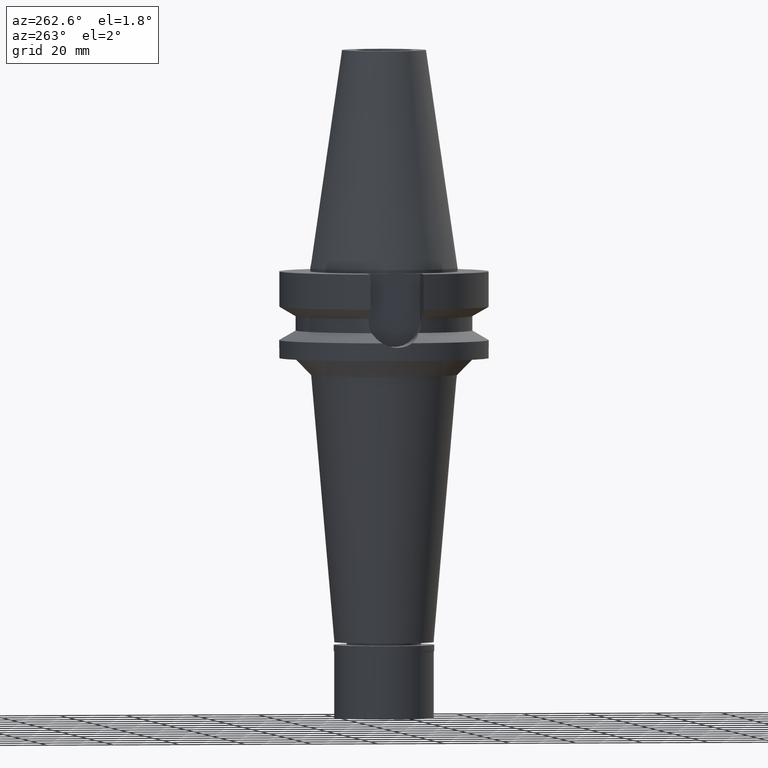
[diagram: clean part render]
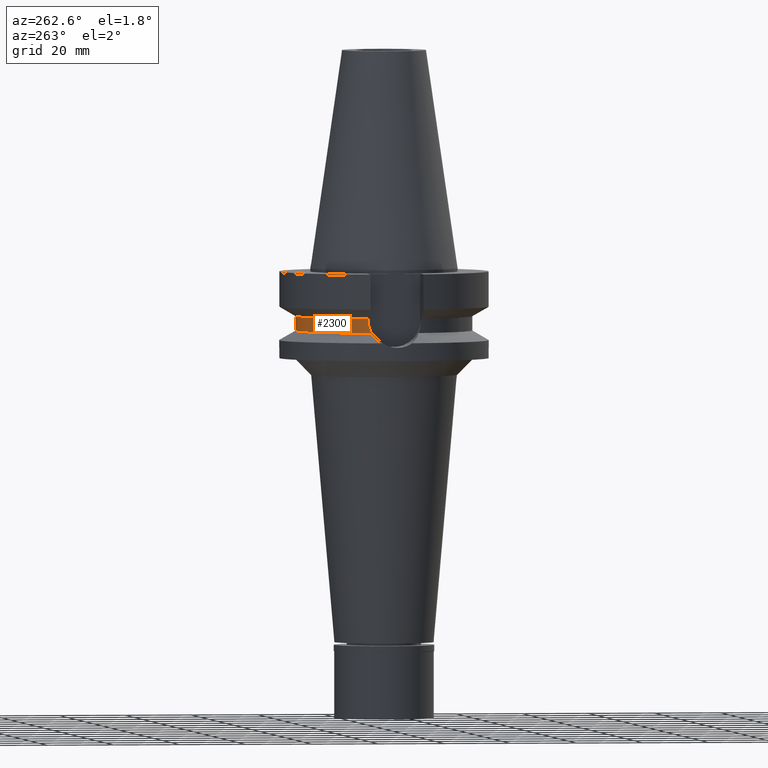
[diagram: same view with one face highlighted and labeled with its STEP entity id]
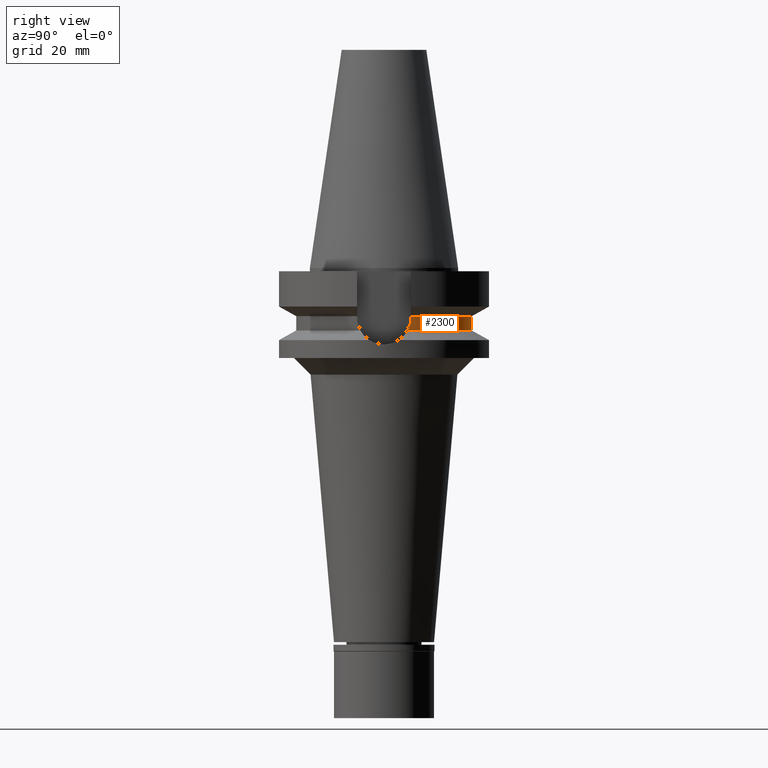
[diagram: same view with one face highlighted and labeled with its STEP entity id]
A machine part, auxiliary view. The second image highlights one B-rep face of the part: STEP entity #2300.
A second angle (right view) of the same face is appended — the face is thin or edge-on in the first view.
In plain terms, the highlighted cylindrical surface (partial cylindrical patch) has radius 26.5 mm, axis along (0, 0, -1).
Its self-contained STEP definition (entity closure, byte-faithful):
#8 = VERTEX_POINT ( 'NONE', #571 ) ;
#45 = ORIENTED_EDGE ( 'NONE', *, *, #2600, .T. ) ;
#61 = EDGE_CURVE ( 'NONE', #1908, #368, #352, .T. ) ;
#75 = VERTEX_POINT ( 'NONE', #2279 ) ;
#77 = CARTESIAN_POINT ( 'NONE',  ( 0.0000000000000000000, 0.0000000000000000000, -18.74774300138999905 ) ) ;
#82 = DIRECTION ( 'NONE',  ( -1.016147365273004305E-06, -3.187008890468015348E-06, -0.9999999999944051421 ) ) ;
#225 = CYLINDRICAL_SURFACE ( 'NONE', #443, 26.50000000000000000 ) ;
#227 = CARTESIAN_POINT ( 'NONE',  ( 25.37573308864354971, 7.637710303585528493, -17.49818662997505925 ) ) ;
#233 = CARTESIAN_POINT ( 'NONE',  ( -25.24772266957999989, 8.050000000000016698, -15.26991016308521054 ) ) ;
#258 = CARTESIAN_POINT ( 'NONE',  ( 25.27269391207094884, 7.973288729587363122, -16.24537813315794210 ) ) ;
#352 = LINE ( 'NONE', #1538, #2216 ) ;
#368 = VERTEX_POINT ( 'NONE', #643 ) ;
#443 = AXIS2_PLACEMENT_3D ( 'NONE', #923, #1893, #1672 ) ;
#490 = CIRCLE ( 'NONE', #2719, 26.49999999999998224 ) ;
#494 = CARTESIAN_POINT ( 'NONE',  ( 25.33293017121149404, 7.777974374833198645, -17.02562462728289816 ) ) ;
#498 = CARTESIAN_POINT ( 'NONE',  ( 25.24772266958000344, 8.050000000000000711, -14.94999999999999929 ) ) ;
#516 = ORIENTED_EDGE ( 'NONE', *, *, #2105, .T. ) ;
#568 = B_SPLINE_CURVE_WITH_KNOTS ( 'NONE', 3,
 ( #1924, #2634, #1428, #2395, #227, #2921, #2661, #494, #3128, #1461, #2426, #258, #1476, #2249 ),
 .UNSPECIFIED., .F., .F.,
 ( 4, 2, 2, 1, 1, 2, 2, 4 ),
 ( 0.0000000000000000000, 0.2499999999999837352, 0.3749999999999755196, 0.4374999999999714673, 0.4687499999999693578, 0.4843749999999682476, 0.4999999999999671929, 1.000000000000000000 ),
 .UNSPECIFIED. ) ;
#571 = CARTESIAN_POINT ( 'NONE',  ( -25.24772216379000156, 8.050001586350001404, -14.45224487750000186 ) ) ;
#643 = CARTESIAN_POINT ( 'NONE',  ( 25.24772413104999913, 8.049995416295999462, -14.45229202408999925 ) ) ;
#679 = CARTESIAN_POINT ( 'NONE',  ( -25.43786288020057995, 7.435590607903159288, -18.11653926705930218 ) ) ;
#709 = CARTESIAN_POINT ( 'NONE',  ( -25.24772266958000344, 8.050000000000000711, -14.94999999999999929 ) ) ;
#713 = VERTEX_POINT ( 'NONE', #2992 ) ;
#720 = CARTESIAN_POINT ( 'NONE',  ( -25.30212858955026789, 7.877670097765133050, -16.61040846296520712 ) ) ;
#923 = CARTESIAN_POINT ( 'NONE',  ( 0.0000000000000000000, 2.144172848286999836E-14, 75.08499999999999375 ) ) ;
#942 = CARTESIAN_POINT ( 'NONE',  ( -25.32118071774123536, 7.816100027253432891, -16.87651110713482439 ) ) ;
#1144 = FACE_OUTER_BOUND ( 'NONE', #2758, .T. ) ;
#1168 = CARTESIAN_POINT ( 'NONE',  ( -25.31202500689251877, 7.845732311877096521, -16.75278555883154397 ) ) ;
#1174 = ORIENTED_EDGE ( 'NONE', *, *, #1945, .F. ) ;
#1223 = ORIENTED_EDGE ( 'NONE', *, *, #3111, .F. ) ;
#1266 = ORIENTED_EDGE ( 'NONE', *, *, #61, .F. ) ;
#1299 = DIRECTION ( 'NONE',  ( 2.936400871424940170E-06, -9.209625025847822727E-06, 0.9999999999532801498 ) ) ;
#1309 = CIRCLE ( 'NONE', #2511, 26.50000000000000711 ) ;
#1408 = CARTESIAN_POINT ( 'NONE',  ( -25.27268309164519877, 7.971812745155487434, -16.08115051887503100 ) ) ;
#1420 = CARTESIAN_POINT ( 'NONE',  ( -25.36814691287579393, 7.663833599036387945, -17.48802854152717501 ) ) ;
#1428 = CARTESIAN_POINT ( 'NONE',  ( 25.44392837596912571, 7.408239564849618652, -18.11709494221907590 ) ) ;
#1461 = CARTESIAN_POINT ( 'NONE',  ( 25.32550670071636034, 7.802071535294315296, -16.93256103017734304 ) ) ;
#1476 = CARTESIAN_POINT ( 'NONE',  ( 25.24772266958001410, 8.050000000000000711, -15.58999736333209363 ) ) ;
#1524 = DIRECTION ( 'NONE',  ( 0.0000000000000000000, 0.0000000000000000000, -1.000000000000000000 ) ) ;
#1538 = CARTESIAN_POINT ( 'NONE',  ( 25.24772266958000344, 8.050000000000000711, -14.94999999999999929 ) ) ;
#1596 = CARTESIAN_POINT ( 'NONE',  ( 0.0000000000000000000, 1.065333950388000029E-14, -14.45225699861000024 ) ) ;
#1672 = DIRECTION ( 'NONE',  ( 0.0000000000000000000, -1.000000000000000000, 0.0000000000000000000 ) ) ;
#1678 = CARTESIAN_POINT ( 'NONE',  ( -25.31950825842963937, 7.821518470895525432, -16.85441217854066664 ) ) ;
#1893 = DIRECTION ( 'NONE',  ( 0.0000000000000000000, 0.0000000000000000000, -1.000000000000000000 ) ) ;
#1908 = VERTEX_POINT ( 'NONE', #498 ) ;
#1924 = CARTESIAN_POINT ( 'NONE',  ( 25.53175183775000079, 7.097862220092999941, -18.74774300138999905 ) ) ;
#1929 = CARTESIAN_POINT ( 'NONE',  ( -25.25396277509629783, 8.030907860991503000, -15.59359823567422509 ) ) ;
#1941 = CARTESIAN_POINT ( 'NONE',  ( -25.31648570732018655, 7.831303109277407692, -16.81376729957251825 ) ) ;
#1945 = EDGE_CURVE ( 'NONE', #8, #75, #2474, .T. ) ;
#1985 = CARTESIAN_POINT ( 'NONE',  ( -25.24772216379000156, 8.050001586350001404, -14.45224487750000186 ) ) ;
#2022 = DIRECTION ( 'NONE',  ( 0.0000000000000000000, 0.0000000000000000000, 1.000000000000000000 ) ) ;
#2035 = DIRECTION ( 'NONE',  ( 0.9634623335000935818, 0.2678438573619981722, 0.0000000000000000000 ) ) ;
#2105 = EDGE_CURVE ( 'NONE', #2518, #713, #490, .T. ) ;
#2216 = VECTOR ( 'NONE', #1299, 1000.000000000000114 ) ;
#2249 = CARTESIAN_POINT ( 'NONE',  ( 25.24772266958000344, 8.050000000000000711, -14.94999999999999929 ) ) ;
#2279 = CARTESIAN_POINT ( 'NONE',  ( -25.24772266958000344, 8.050000000000000711, -14.94999999999999929 ) ) ;
#2300 = ADVANCED_FACE ( 'NONE', ( #1144 ), #225, .T. ) ;
#2395 = CARTESIAN_POINT ( 'NONE',  ( 25.39164951579482832, 7.584807667157175359, -17.65197957209930379 ) ) ;
#2426 = CARTESIAN_POINT ( 'NONE',  ( 25.32419709970849553, 7.806318959903377319, -16.91578803900454275 ) ) ;
#2430 = CARTESIAN_POINT ( 'NONE',  ( -25.53175183775000079, 7.097862220092999941, -18.74774300138999905 ) ) ;
#2474 = LINE ( 'NONE', #1985, #2611 ) ;
#2511 = AXIS2_PLACEMENT_3D ( 'NONE', #1596, #1524, #3037 ) ;
#2518 = VERTEX_POINT ( 'NONE', #2919 ) ;
#2600 = EDGE_CURVE ( 'NONE', #8, #368, #1309, .T. ) ;
#2607 = CARTESIAN_POINT ( 'NONE',  ( -25.28048322354057831, 7.947042364855098739, -16.24399973120450369 ) ) ;
#2611 = VECTOR ( 'NONE', #82, 1000.000000000000114 ) ;
#2634 = CARTESIAN_POINT ( 'NONE',  ( 25.48482038771259894, 7.266679548265874367, -18.43222872480207286 ) ) ;
#2661 = CARTESIAN_POINT ( 'NONE',  ( 25.34388450893356293, 7.742333382853579415, -17.15666984746628287 ) ) ;
#2719 = AXIS2_PLACEMENT_3D ( 'NONE', #77, #2022, #2035 ) ;
#2758 = EDGE_LOOP ( 'NONE', ( #45, #1266, #1223, #516, #2842, #1174 ) ) ;
#2826 = EDGE_CURVE ( 'NONE', #75, #713, #2838, .T. ) ;
#2838 = B_SPLINE_CURVE_WITH_KNOTS ( 'NONE', 3,
 ( #709, #233, #1929, #1408, #2607, #2897, #720, #1168, #1941, #1678, #942, #1420, #679, #2430 ),
 .UNSPECIFIED., .F., .F.,
 ( 4, 2, 2, 1, 1, 2, 2, 4 ),
 ( 0.0000000000000000000, 0.2500000000000195399, 0.3750000000000286438, 0.4375000000000331402, 0.4687500000000342504, 0.4843750000000346945, 0.5000000000000350830, 1.000000000000000000 ),
 .UNSPECIFIED. ) ;
#2842 = ORIENTED_EDGE ( 'NONE', *, *, #2826, .F. ) ;
#2897 = CARTESIAN_POINT ( 'NONE',  ( -25.29452346095226289, 7.902092865014278544, -16.48827265657957142 ) ) ;
#2919 = CARTESIAN_POINT ( 'NONE',  ( 25.53175183775000079, 7.097862220092999941, -18.74774300138999905 ) ) ;
#2921 = CARTESIAN_POINT ( 'NONE',  ( 25.35412323727685546, 7.708830947829163449, -17.27007949507370199 ) ) ;
#2992 = CARTESIAN_POINT ( 'NONE',  ( -25.53175183775000079, 7.097862220092999941, -18.74774300138999905 ) ) ;
#3037 = DIRECTION ( 'NONE',  ( -0.9527442516822307583, 0.3037735849057093818, 0.0000000000000000000 ) ) ;
#3111 = EDGE_CURVE ( 'NONE', #2518, #1908, #568, .T. ) ;
#3128 = CARTESIAN_POINT ( 'NONE',  ( 25.32844777904740141, 7.792527725331447108, -16.96974754119624507 ) ) ;